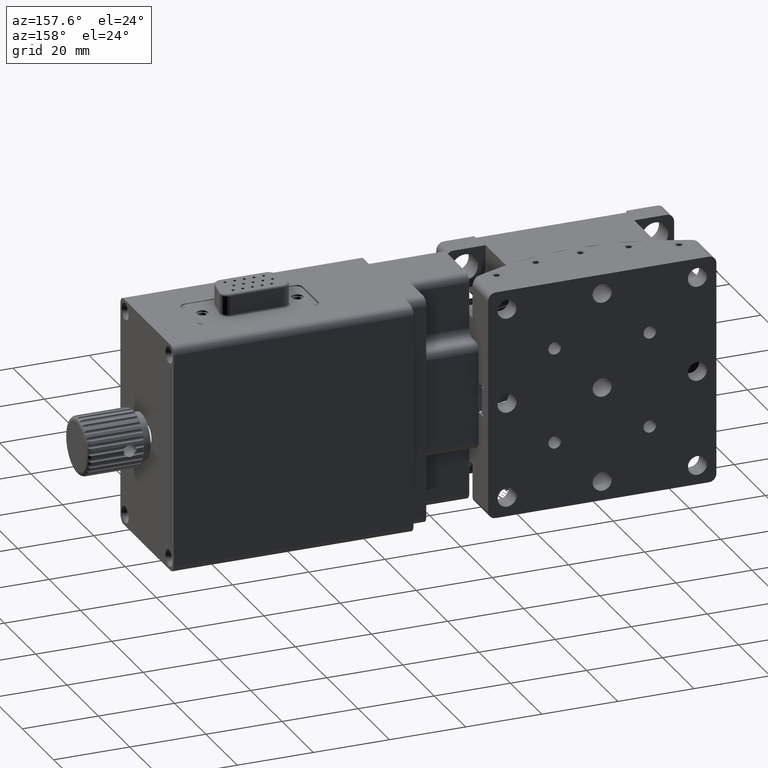
[diagram: clean part render]
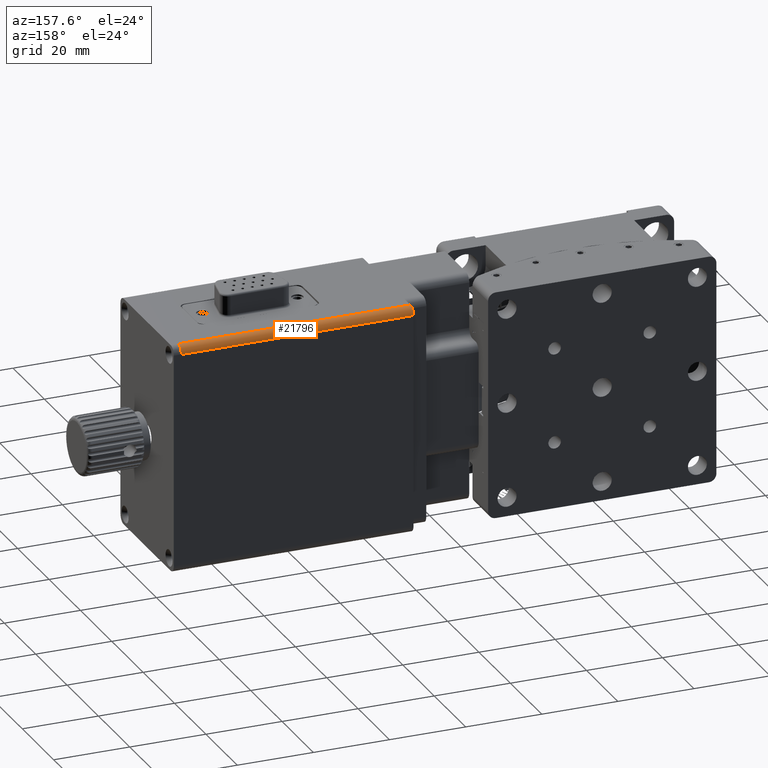
[diagram: same view with one face highlighted and labeled with its STEP entity id]
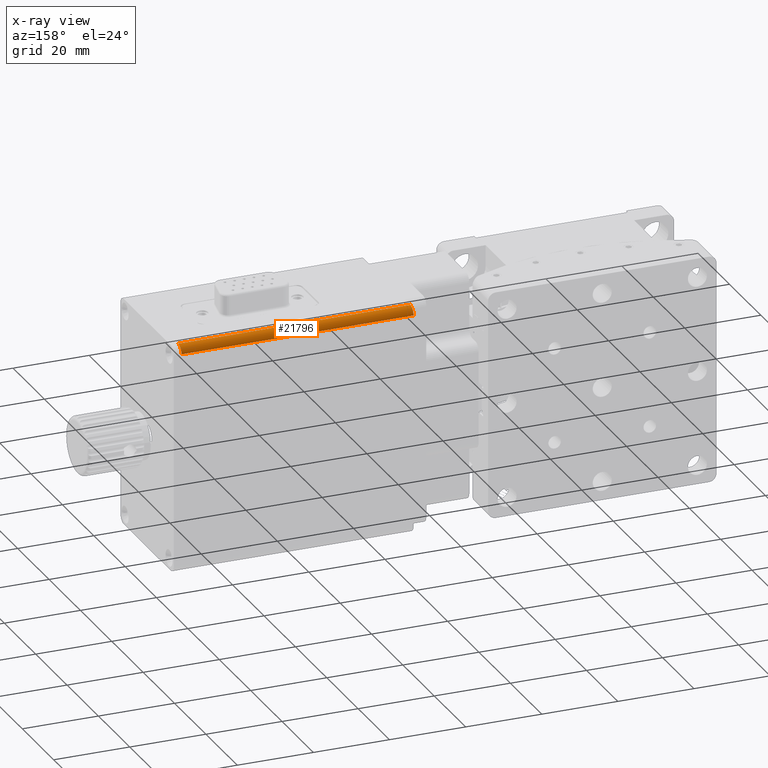
[diagram: x-ray of the same camera — body ghosted, the highlighted face saturated]
A machine part, auxiliary view. The second image highlights one B-rep face of the part: STEP entity #21796.
The next image is the same camera in x-ray: the body ghosted, the highlighted face saturated — about 0% of this face is hidden behind the body in this view.
In plain terms, the highlighted cylindrical surface (edge-blend (fillet) strip) has radius 2 mm, axis along (1, 0, -0).
Its self-contained STEP definition (entity closure, byte-faithful):
#49 = DIRECTION ( 'NONE',  ( 0.0000000000000000000, 0.0000000000000000000, -1.000000000000000000 ) ) ;
#1244 = DIRECTION ( 'NONE',  ( 0.0000000000000000000, 0.0000000000000000000, -1.000000000000000000 ) ) ;
#2071 = ORIENTED_EDGE ( 'NONE', *, *, #19278, .F. ) ;
#2201 = FACE_OUTER_BOUND ( 'NONE', #31119, .T. ) ;
#3310 = CARTESIAN_POINT ( 'NONE',  ( 50.00000000000000000, 32.00000000000000000, 27.99999999999998600 ) ) ;
#3817 = DIRECTION ( 'NONE',  ( 1.000000000000000000, 0.0000000000000000000, -0.0000000000000000000 ) ) ;
#4270 = ORIENTED_EDGE ( 'NONE', *, *, #10405, .F. ) ;
#5987 = AXIS2_PLACEMENT_3D ( 'NONE', #47804, #24564, #1244 ) ;
#6185 = VERTEX_POINT ( 'NONE', #23170 ) ;
#6373 = EDGE_CURVE ( 'NONE', #22145, #30367, #34162, .T. ) ;
#7574 = CARTESIAN_POINT ( 'NONE',  ( 50.00000000000000000, 32.00000000000000000, 29.99999999999998900 ) ) ;
#10405 = EDGE_CURVE ( 'NONE', #6185, #22145, #31503, .T. ) ;
#15446 = ORIENTED_EDGE ( 'NONE', *, *, #24605, .F. ) ;
#16900 = LINE ( 'NONE', #7574, #47865 ) ;
#19167 = DIRECTION ( 'NONE',  ( -1.000000000000000000, -0.0000000000000000000, 0.0000000000000000000 ) ) ;
#19278 = EDGE_CURVE ( 'NONE', #30367, #35409, #48794, .T. ) ;
#19647 = CARTESIAN_POINT ( 'NONE',  ( 110.9999999999999900, 34.00000000000000000, 27.99999999999998600 ) ) ;
#21796 = ADVANCED_FACE ( 'NONE', ( #2201 ), #47791, .T. ) ;
#21919 = CARTESIAN_POINT ( 'NONE',  ( 110.9999999999999900, 32.00000000000000000, 29.99999999999998900 ) ) ;
#22145 = VERTEX_POINT ( 'NONE', #37742 ) ;
#22662 = VECTOR ( 'NONE', #32632, 1000.000000000000000 ) ;
#22750 = DIRECTION ( 'NONE',  ( -1.000000000000000000, -0.0000000000000000000, 0.0000000000000000000 ) ) ;
#23170 = CARTESIAN_POINT ( 'NONE',  ( 50.00000000000000000, 32.00000000000000000, 29.99999999999998900 ) ) ;
#24564 = DIRECTION ( 'NONE',  ( 1.000000000000000000, -0.0000000000000000000, 0.0000000000000000000 ) ) ;
#24605 = EDGE_CURVE ( 'NONE', #35409, #6185, #16900, .T. ) ;
#30224 = AXIS2_PLACEMENT_3D ( 'NONE', #45943, #22750, #49893 ) ;
#30367 = VERTEX_POINT ( 'NONE', #19647 ) ;
#31119 = EDGE_LOOP ( 'NONE', ( #4270, #15446, #2071, #31273 ) ) ;
#31273 = ORIENTED_EDGE ( 'NONE', *, *, #6373, .F. ) ;
#31503 = CIRCLE ( 'NONE', #30224, 1.999999999999998200 ) ;
#32632 = DIRECTION ( 'NONE',  ( 1.000000000000000000, 0.0000000000000000000, 0.0000000000000000000 ) ) ;
#34162 = LINE ( 'NONE', #48088, #22662 ) ;
#35409 = VERTEX_POINT ( 'NONE', #21919 ) ;
#35769 = AXIS2_PLACEMENT_3D ( 'NONE', #3310, #3817, #49 ) ;
#37742 = CARTESIAN_POINT ( 'NONE',  ( 50.00000000000000000, 34.00000000000000000, 27.99999999999998600 ) ) ;
#45943 = CARTESIAN_POINT ( 'NONE',  ( 50.00000000000000000, 32.00000000000000000, 27.99999999999998600 ) ) ;
#47791 = CYLINDRICAL_SURFACE ( 'NONE', #35769, 1.999999999999998200 ) ;
#47804 = CARTESIAN_POINT ( 'NONE',  ( 110.9999999999999900, 32.00000000000000000, 27.99999999999998600 ) ) ;
#47865 = VECTOR ( 'NONE', #19167, 1000.000000000000000 ) ;
#48088 = CARTESIAN_POINT ( 'NONE',  ( 50.00000000000000000, 34.00000000000000000, 27.99999999999998600 ) ) ;
#48794 = CIRCLE ( 'NONE', #5987, 1.999999999999998200 ) ;
#49893 = DIRECTION ( 'NONE',  ( 0.0000000000000000000, 0.0000000000000000000, -1.000000000000000000 ) ) ;